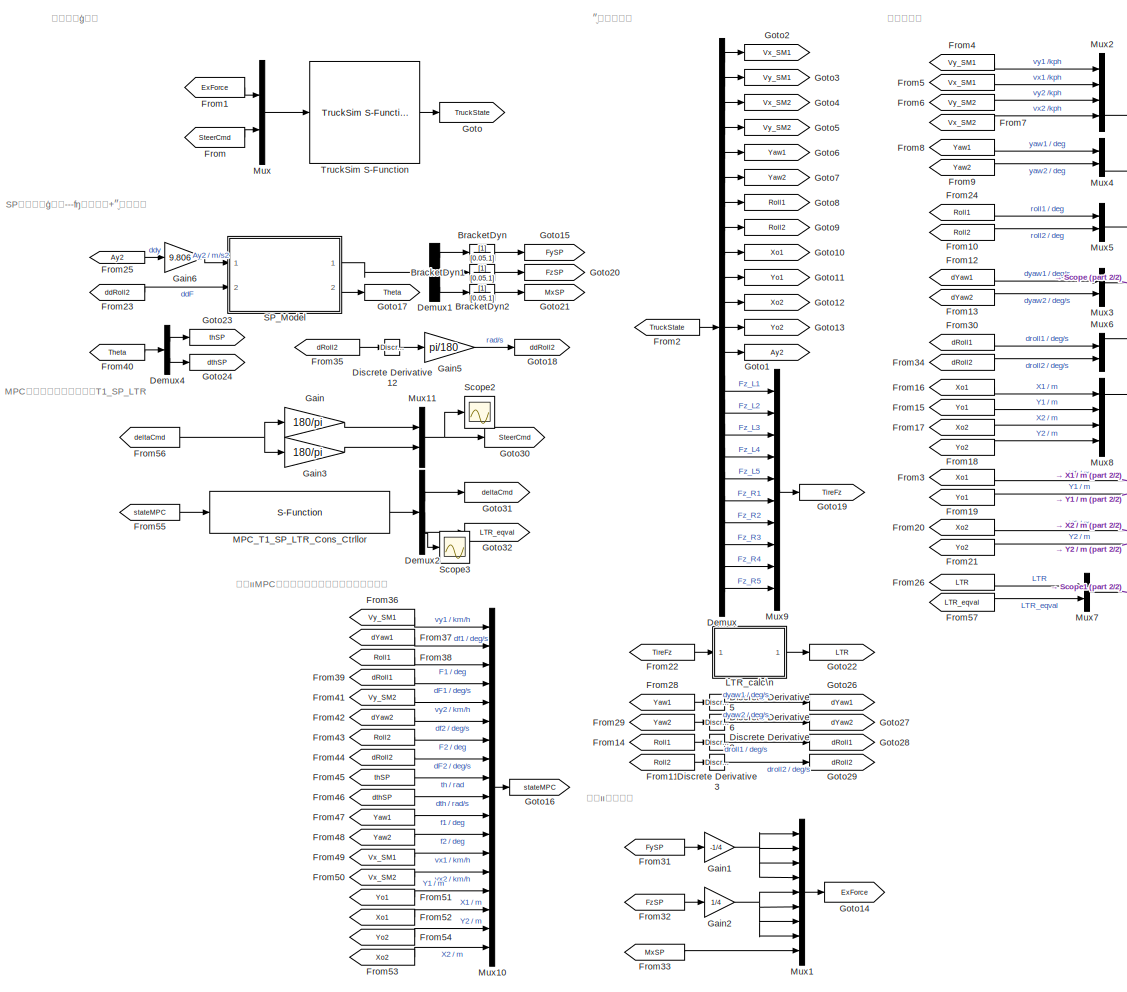
[diagram: root canvas - part 1/2, most of the canvas]
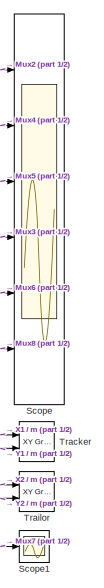
[diagram: root canvas - part 2/2, middle right region]
MODEL ALGO_Corner_TrajTrack_MPC_T1_SP_LTR
KIND model
BLOCK [TransferFcn] BracketDyn
  Denominator = [0.05 1]
  SID = 10
BLOCK [TransferFcn] BracketDyn1
  Denominator = [0.05 1]
  SID = 11
BLOCK [TransferFcn] BracketDyn2
  Denominator = [0.05 1]
  SID = 12
BLOCK [Demux] Demux
  DisplayOption = bar
  Outputs = 23
  Ports = [1, 23]
  SID = 150
BLOCK [Demux] Demux1
  DisplayOption = bar
  Outputs = 3
  Ports = [1, 3]
  SID = 13
BLOCK [Demux] Demux2
  DisplayOption = bar
  Outputs = 3
  Ports = [1, 3]
  SID = 218
BLOCK [Demux] Demux4
  DisplayOption = bar
  Outputs = 2
  Ports = [1, 2]
  SID = 14
BLOCK [Reference] Discrete Derivative12  REF=simulink/Discrete/Discrete Derivative
  DoSatur = off
  ICPrevScaledInput = 0.0
  InputProcessing = Elements as channels (sample based)
  LockScale = off
  OutDataType = fixdt(1, 16)
  OutDataTypeStr = Inherit: Inherit via internal rule
  OutMax = []
  OutMin = []
  OutScaling = 2^-10
  OutputDataTypeScalingMode = Inherit via internal rule
  Ports = [1, 1]
  RndMeth = Floor
  SID = 15
  SourceBlock = simulink/Discrete/Discrete Derivative
  SourceProductBaseCode = SL
  SourceProductName = Simulink
  SourceType = Discrete Derivative
  gainval = 1.0
BLOCK [Reference] Discrete Derivative2  REF=simulink/Discrete/Discrete Derivative
  DoSatur = off
  ICPrevScaledInput = 0.0
  InputProcessing = Elements as channels (sample based)
  LockScale = off
  OutDataType = fixdt(1, 16)
  OutDataTypeStr = Inherit: Inherit via internal rule
  OutMax = []
  OutMin = []
  OutScaling = 2^-10
  OutputDataTypeScalingMode = Inherit via internal rule
  Ports = [1, 1]
  RndMeth = Floor
  SID = 48
  SourceBlock = simulink/Discrete/Discrete Derivative
  SourceProductBaseCode = SL
  SourceProductName = Simulink
  SourceType = Discrete Derivative
  gainval = 1.0
BLOCK [Reference] Discrete Derivative3  REF=simulink/Discrete/Discrete Derivative
  DoSatur = off
  ICPrevScaledInput = 0.0
  InputProcessing = Elements as channels (sample based)
  LockScale = off
  OutDataType = fixdt(1, 16)
  OutDataTypeStr = Inherit: Inherit via internal rule
  OutMax = []
  OutMin = []
  OutScaling = 2^-10
  OutputDataTypeScalingMode = Inherit via internal rule
  Ports = [1, 1]
  RndMeth = Floor
  SID = 49
  SourceBlock = simulink/Discrete/Discrete Derivative
  SourceProductBaseCode = SL
  SourceProductName = Simulink
  SourceType = Discrete Derivative
  gainval = 1.0
BLOCK [Reference] Discrete Derivative5  REF=simulink/Discrete/Discrete Derivative
  DoSatur = off
  ICPrevScaledInput = 0.0
  InputProcessing = Elements as channels (sample based)
  LockScale = off
  OutDataType = fixdt(1, 16)
  OutDataTypeStr = Inherit: Inherit via internal rule
  OutMax = []
  OutMin = []
  OutScaling = 2^-10
  OutputDataTypeScalingMode = Inherit via internal rule
  Ports = [1, 1]
  RndMeth = Floor
  SID = 178
  SourceBlock = simulink/Discrete/Discrete Derivative
  SourceProductBaseCode = SL
  SourceProductName = Simulink
  SourceType = Discrete Derivative
  gainval = 1.0
BLOCK [Reference] Discrete Derivative6  REF=simulink/Discrete/Discrete Derivative
  DoSatur = off
  ICPrevScaledInput = 0.0
  InputProcessing = Elements as channels (sample based)
  LockScale = off
  OutDataType = fixdt(1, 16)
  OutDataTypeStr = Inherit: Inherit via internal rule
  OutMax = []
  OutMin = []
  OutScaling = 2^-10
  OutputDataTypeScalingMode = Inherit via internal rule
  Ports = [1, 1]
  RndMeth = Floor
  SID = 179
  SourceBlock = simulink/Discrete/Discrete Derivative
  SourceProductBaseCode = SL
  SourceProductName = Simulink
  SourceType = Discrete Derivative
  gainval = 1.0
BLOCK [From] From
  GotoTag = SteerCmd
  SID = 3
BLOCK [From] From1
  GotoTag = ExForce
  SID = 8
BLOCK [From] From10
  GotoTag = Roll2
  SID = 50
BLOCK [From] From11
  GotoTag = Roll2
  SID = 51
BLOCK [From] From12
  GotoTag = dYaw1
  SID = 184
BLOCK [From] From13
  GotoTag = dYaw2
  SID = 185
BLOCK [From] From14
  GotoTag = Roll1
  SID = 54
BLOCK [From] From15
  GotoTag = Yo1
  SID = 55
BLOCK [From] From16
  GotoTag = Xo1
  SID = 56
BLOCK [From] From17
  GotoTag = Xo2
  SID = 57
BLOCK [From] From18
  GotoTag = Yo2
  SID = 58
BLOCK [From] From19
  GotoTag = Yo1
  SID = 59
BLOCK [From] From2
  GotoTag = TruckState
  SID = 151
BLOCK [From] From20
  GotoTag = Xo2
  SID = 60
BLOCK [From] From21
  GotoTag = Yo2
  SID = 61
BLOCK [From] From22
  GotoTag = TireFz
  SID = 170
BLOCK [From] From23
  GotoTag = ddRoll2
  SID = 17
BLOCK [From] From24
  GotoTag = Roll1
  SID = 62
BLOCK [From] From25
  GotoTag = Ay2
  SID = 18
BLOCK [From] From26
  GotoTag = LTR
  SID = 176
BLOCK [From] From28
  GotoTag = Yaw1
  SID = 180
BLOCK [From] From29
  GotoTag = Yaw2
  SID = 181
BLOCK [From] From3
  GotoTag = Xo1
  SID = 63
BLOCK [From] From30
  GotoTag = dRoll1
  SID = 188
BLOCK [From] From31
  GotoTag = FySP
  SID = 19
BLOCK [From] From32
  GotoTag = FzSP
  SID = 20
BLOCK [From] From33
  GotoTag = MxSP
  SID = 21
BLOCK [From] From34
  GotoTag = dRoll2
  SID = 189
BLOCK [From] From35
  GotoTag = dRoll2
  SID = 190
BLOCK [From] From36
  GotoTag = Vy_SM1
  SID = 196
BLOCK [From] From37
  GotoTag = dYaw1
  SID = 197
BLOCK [From] From38
  GotoTag = Roll1
  SID = 198
BLOCK [From] From39
  GotoTag = dRoll1
  SID = 199
BLOCK [From] From4
  GotoTag = Vy_SM1
  SID = 64
BLOCK [From] From40
  GotoTag = Theta
  SID = 23
BLOCK [From] From41
  GotoTag = Vy_SM2
  SID = 200
BLOCK [From] From42
  GotoTag = dYaw2
  SID = 201
BLOCK [From] From43
  GotoTag = Roll2
  SID = 202
BLOCK [From] From44
  GotoTag = dRoll2
  SID = 203
BLOCK [From] From45
  GotoTag = thSP
  SID = 204
BLOCK [From] From46
  GotoTag = dthSP
  SID = 205
BLOCK [From] From47
  GotoTag = Yaw1
  SID = 206
BLOCK [From] From48
  GotoTag = Yaw2
  SID = 207
BLOCK [From] From49
  GotoTag = Vx_SM1
  SID = 208
BLOCK [From] From5
  GotoTag = Vx_SM1
  SID = 65
BLOCK [From] From50
  GotoTag = Vx_SM2
  SID = 209
BLOCK [From] From51
  GotoTag = Yo1
  SID = 210
BLOCK [From] From52
  GotoTag = Xo1
  SID = 211
BLOCK [From] From53
  GotoTag = Xo2
  SID = 212
BLOCK [From] From54
  GotoTag = Yo2
  SID = 213
BLOCK [From] From55
  GotoTag = stateMPC
  SID = 215
BLOCK [From] From56
  GotoTag = deltaCmd
  SID = 222
BLOCK [From] From57
  GotoTag = LTR_eqval
  SID = 228
BLOCK [From] From6
  GotoTag = Vy_SM2
  SID = 66
BLOCK [From] From7
  GotoTag = Vx_SM2
  SID = 67
BLOCK [From] From8
  GotoTag = Yaw1
  SID = 68
BLOCK [From] From9
  GotoTag = Yaw2
  SID = 69
BLOCK [Gain] Gain
  Gain = 180/pi
  OutDataTypeStr = Inherit: Inherit via internal rule
  ParamDataTypeStr = Inherit: Inherit via internal rule
  SID = 223
  SaturateOnIntegerOverflow = off
BLOCK [Gain] Gain1
  Gain = -1/4
  OutDataTypeStr = Inherit: Inherit via internal rule
  ParamDataTypeStr = Inherit: Inherit via internal rule
  SID = 24
  SaturateOnIntegerOverflow = off
BLOCK [Gain] Gain2
  Gain = 1/4
  OutDataTypeStr = Inherit: Inherit via internal rule
  ParamDataTypeStr = Inherit: Inherit via internal rule
  SID = 25
  SaturateOnIntegerOverflow = off
BLOCK [Gain] Gain3
  Gain = 180/pi
  OutDataTypeStr = Inherit: Inherit via internal rule
  ParamDataTypeStr = Inherit: Inherit via internal rule
  SID = 224
  SaturateOnIntegerOverflow = off
BLOCK [Gain] Gain5
  Gain = pi/180
  OutDataTypeStr = Inherit: Inherit via internal rule
  ParamDataTypeStr = Inherit: Inherit via internal rule
  SID = 26
  SaturateOnIntegerOverflow = off
BLOCK [Gain] Gain6
  Gain = 9.806
  OutDataTypeStr = Inherit: Inherit via internal rule
  ParamDataTypeStr = Inherit: Inherit via internal rule
  SID = 27
  SaturateOnIntegerOverflow = off
BLOCK [Goto] Goto
  GotoTag = TruckState
  SID = 4
BLOCK [Goto] Goto1
  GotoTag = Ay2
  SID = 152
BLOCK [Goto] Goto10
  GotoTag = Xo1
  SID = 153
BLOCK [Goto] Goto11
  GotoTag = Yo1
  SID = 154
BLOCK [Goto] Goto12
  GotoTag = Xo2
  SID = 155
BLOCK [Goto] Goto13
  GotoTag = Yo2
  SID = 156
BLOCK [Goto] Goto14
  GotoTag = ExForce
  SID = 28
BLOCK [Goto] Goto15
  GotoTag = FySP
  SID = 29
BLOCK [Goto] Goto16
  GotoTag = stateMPC
  SID = 214
BLOCK [Goto] Goto17
  GotoTag = Theta
  SID = 30
BLOCK [Goto] Goto18
  GotoTag = ddRoll2
  SID = 31
BLOCK [Goto] Goto19
  GotoTag = TireFz
  SID = 169
BLOCK [Goto] Goto2
  GotoTag = Vx_SM1
  SID = 157
BLOCK [Goto] Goto20
  GotoTag = FzSP
  SID = 32
BLOCK [Goto] Goto21
  GotoTag = MxSP
  SID = 33
BLOCK [Goto] Goto22
  GotoTag = LTR
  SID = 174
BLOCK [Goto] Goto23
  GotoTag = thSP
  SID = 34
BLOCK [Goto] Goto24
  GotoTag = dthSP
  SID = 35
BLOCK [Goto] Goto26
  GotoTag = dYaw1
  SID = 182
BLOCK [Goto] Goto27
  GotoTag = dYaw2
  SID = 183
BLOCK [Goto] Goto28
  GotoTag = dRoll1
  SID = 186
BLOCK [Goto] Goto29
  GotoTag = dRoll2
  SID = 187
BLOCK [Goto] Goto3
  GotoTag = Vy_SM1
  SID = 160
BLOCK [Goto] Goto30
  GotoTag = SteerCmd
  SID = 219
BLOCK [Goto] Goto31
  GotoTag = deltaCmd
  SID = 221
BLOCK [Goto] Goto32
  GotoTag = LTR_eqval
  SID = 225
BLOCK [Goto] Goto4
  GotoTag = Vx_SM2
  SID = 161
BLOCK [Goto] Goto5
  GotoTag = Vy_SM2
  SID = 162
BLOCK [Goto] Goto6
  GotoTag = Yaw1
  SID = 163
BLOCK [Goto] Goto7
  GotoTag = Yaw2
  SID = 164
BLOCK [Goto] Goto8
  GotoTag = Roll1
  SID = 165
BLOCK [Goto] Goto9
  GotoTag = Roll2
  SID = 166
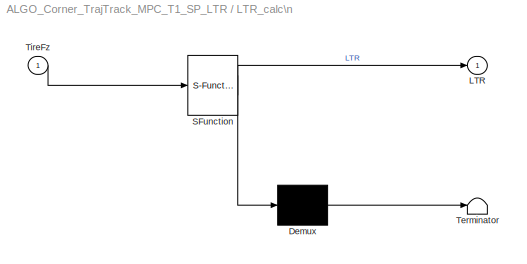
BLOCK [SubSystem] LTR_calc\n
  ErrorFcn = Stateflow.Translate.translate
  PermitHierarchicalResolution = ExplicitOnly
  Ports = [1, 1]
  RequestExecContextInheritance = off
  SFBlockType = MATLAB Function
  SID = 173
  TreatAsAtomicUnit = on
BLOCK [Demux] LTR_calc\n/ Demux 
  Outputs = 1
  Ports = [1, 1]
  SID = 173::20
BLOCK [S-Function] LTR_calc\n/ SFunction 
  EnableBusSupport = on
  FunctionName = sf_sfun
  PortCounts = [1 2]
  Ports = [1, 2]
  SFcnIsStateOwnerBlock = off
  SFunctionDeploymentMode = off
  SID = 173::19
  Tag = Stateflow S-Function ALGO_Corner_TrajTrack_MPC_T1_SP_LTR 2
BLOCK [Terminator] LTR_calc\n/ Terminator 
  SID = 173::21
BLOCK [Outport] LTR_calc\n/LTR
  IconDisplay = Port number
  SID = 173::5
BLOCK [Inport] LTR_calc\n/TireFz
  IconDisplay = Port number
  SID = 173::1
BLOCK [S-Function] MPC_T1_SP_LTR_Cons_Ctrllor
  EnableBusSupport = off
  FunctionName = MPC_Corner_TrajTrackT1_SP_LTR_Cons_Ctrllor
  Ports = [1, 1]
  SFcnIsStateOwnerBlock = off
  SFunctionDeploymentMode = off
  SID = 194
BLOCK [Mux] Mux
  DisplayOption = bar
  Inputs = 2
  Ports = [2, 1]
  SID = 9
BLOCK [Mux] Mux1
  DisplayOption = bar
  Inputs = 9
  Ports = [9, 1]
  SID = 36
BLOCK [Mux] Mux10
  DisplayOption = bar
  Inputs = 18
  Ports = [18, 1]
  SID = 195
BLOCK [Mux] Mux11
  DisplayOption = bar
  Inputs = 2
  Ports = [2, 1]
  SID = 220
BLOCK [Mux] Mux2
  DisplayOption = bar
  Ports = [4, 1]
  SID = 70
BLOCK [Mux] Mux3
  DisplayOption = bar
  Inputs = 2
  Ports = [2, 1]
  SID = 71
BLOCK [Mux] Mux4
  DisplayOption = bar
  Inputs = 2
  Ports = [2, 1]
  SID = 72
BLOCK [Mux] Mux5
  DisplayOption = bar
  Inputs = 2
  Ports = [2, 1]
  SID = 73
BLOCK [Mux] Mux6
  DisplayOption = bar
  Inputs = 2
  Ports = [2, 1]
  SID = 74
BLOCK [Mux] Mux7
  DisplayOption = bar
  Inputs = 2
  Ports = [2, 1]
  SID = 230
BLOCK [Mux] Mux8
  DisplayOption = bar
  Ports = [4, 1]
  SID = 75
BLOCK [Mux] Mux9
  DisplayOption = bar
  Inputs = 10
  Ports = [10, 1]
  SID = 168
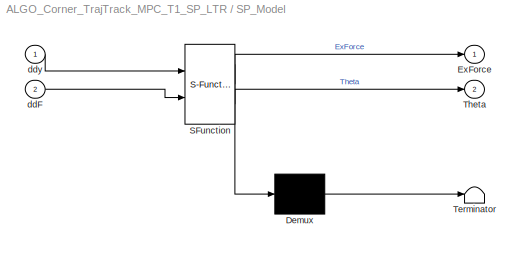
BLOCK [SubSystem] SP_Model
  ErrorFcn = Stateflow.Translate.translate
  PermitHierarchicalResolution = ExplicitOnly
  Ports = [2, 2]
  RequestExecContextInheritance = off
  SFBlockType = MATLAB Function
  SID = 37
  SystemSampleTime = 0.005
  TreatAsAtomicUnit = on
BLOCK [Demux] SP_Model/ Demux 
  Outputs = 1
  Ports = [1, 1]
  SID = 37::20
BLOCK [S-Function] SP_Model/ SFunction 
  EnableBusSupport = on
  FunctionName = sf_sfun
  PortCounts = [2 3]
  Ports = [2, 3]
  SFcnIsStateOwnerBlock = off
  SFunctionDeploymentMode = off
  SID = 37::19
  Tag = Stateflow S-Function ALGO_Corner_TrajTrack_MPC_T1_SP_LTR 1
BLOCK [Terminator] SP_Model/ Terminator 
  SID = 37::21
BLOCK [Outport] SP_Model/ExForce
  IconDisplay = Port number
  SID = 37::5
BLOCK [Outport] SP_Model/Theta
  IconDisplay = Port number
  Port = 2
  SID = 37::23
BLOCK [Inport] SP_Model/ddF
  IconDisplay = Port number
  Port = 2
  SID = 37::22
BLOCK [Inport] SP_Model/ddy
  IconDisplay = Port number
  SID = 37::1
BLOCK [Scope] Scope
  Floating = off
  NumInputPorts = 6
  Ports = [6]
  SID = 76
  ScopeSpecificationString = Simulink.scopes.TimeScopeBlockCfg('CurrentConfiguration', extmgr.ConfigurationSet(extmgr.Configuration('Core','General UI',true),extmgr.Configuration('Core','Source UI',true),extmgr.Configuration('Sources','WiredSimulink',true),extmgr.Configuration('Visuals','Time Domain',true,'SerializedDisplays',{struct('MinYLimReal','-3.99985','MaxYLimReal','4.73302','YLabelReal','','MinYLimMag','0.00000','MaxY...<+4974ch>
BLOCK [Scope] Scope1
  Floating = off
  NumInputPorts = 1
  Ports = [1]
  SID = 232
  ScopeSpecificationString = Simulink.scopes.TimeScopeBlockCfg('CurrentConfiguration', extmgr.ConfigurationSet(extmgr.Configuration('Core','General UI',true),extmgr.Configuration('Core','Source UI',true),extmgr.Configuration('Sources','WiredSimulink',true,'DataLoggingVariableName','ScopeData1'),extmgr.Configuration('Visuals','Time Domain',true,'SerializedDisplays',{struct('MinYLimReal','-1.43891','MaxYLimReal','3.98964','YLab...<+1465ch>
BLOCK [Scope] Scope2
  Floating = off
  NumInputPorts = 1
  Ports = [1]
  SID = 227
  ScopeSpecificationString = Simulink.scopes.TimeScopeBlockCfg('CurrentConfiguration', extmgr.ConfigurationSet(extmgr.Configuration('Core','General UI',true),extmgr.Configuration('Core','Source UI',true),extmgr.Configuration('Sources','WiredSimulink',true,'DataLoggingVariableName','ScopeData2'),extmgr.Configuration('Visuals','Time Domain',true,'SerializedDisplays',{struct('MinYLimReal','-5.86223','MaxYLimReal','6.89259','YLab...<+1400ch>
BLOCK [Scope] Scope3
  Floating = off
  NumInputPorts = 1
  Ports = [1]
  SID = 233
  ScopeSpecificationString = Simulink.scopes.TimeScopeBlockCfg('CurrentConfiguration', extmgr.ConfigurationSet(extmgr.Configuration('Core','General UI',true),extmgr.Configuration('Core','Source UI',true),extmgr.Configuration('Sources','WiredSimulink',true,'DataLoggingVariableName','ScopeData1'),extmgr.Configuration('Visuals','Time Domain',true,'SerializedDisplays',{struct('MinYLimReal','0.875','MaxYLimReal','2.125','YLabelRea...<+1377ch>
BLOCK [Reference] Tracker  REF=simulink/Sinks/XY Graph
  Ports = [2]
  SID = 77
  SourceBlock = simulink/Sinks/XY Graph
  SourceProductBaseCode = SL
  SourceProductName = Simulink
  SourceType = XY scope.
  st = -1
  xmax = 80
  xmin = -10
  ymax = 80
  ymin = -10
BLOCK [Reference] Trailor   REF=simulink/Sinks/XY Graph
  Commented = on
  Ports = [2]
  SID = 78
  SourceBlock = simulink/Sinks/XY Graph
  SourceProductBaseCode = SL
  SourceProductName = Simulink
  SourceType = XY scope.
  st = -1
  xmax = 250
  xmin = -10
  ymax = 20
  ymin = -20
BLOCK [Reference] TruckSim S-Function  REF=Solver_SF/TruckSim S-Function
  MultiThreadCoSim = auto
  Ports = [1, 1]
  Priority = 1
  SID = 1
  SIMFILE = ALGO_Corner_Tanker_TrajTrack_MPC_T1_SP_LTR.sim
  SourceBlock = Solver_SF/TruckSim S-Function
  SourceType = Vehicle math model library
ANNOTATION (root): MPC控制器——T1_SP_LTR
ANNOTATION (root): SP单摆模型---Ê<copyright redacted>
ANNOTATION (root): 车辆模型
ANNOTATION (root): 观测区
ANNOTATION (root): 状态量拆分
ANNOTATION (root): 组装MPC控制器所用输入量
ANNOTATION (root): 组装外部力
LINE BracketDyn1:1 -> Goto20:1
LINE BracketDyn2:1 -> Goto21:1
LINE BracketDyn:1 -> Goto15:1
LINE Demux1:1 -> BracketDyn:1
LINE Demux1:2 -> BracketDyn1:1
LINE Demux1:3 -> BracketDyn2:1
LINE Demux2:1 -> Goto31:1
LINE Demux2:2 -> Goto32:1
LINE Demux2:3 -> Scope3:1
LINE Demux4:1 -> Goto23:1
LINE Demux4:2 -> Goto24:1
LINE Demux:1 -> Goto2:1
LINE Demux:10 -> Goto11:1
LINE Demux:11 -> Goto12:1
LINE Demux:12 -> Goto13:1
LINE Demux:13 -> Goto1:1
LINE Demux:14 -> Mux9:1
LINE Demux:15 -> Mux9:2
LINE Demux:16 -> Mux9:3
LINE Demux:17 -> Mux9:4
LINE Demux:18 -> Mux9:5
LINE Demux:19 -> Mux9:6
LINE Demux:2 -> Goto3:1
LINE Demux:20 -> Mux9:7
LINE Demux:21 -> Mux9:8
LINE Demux:22 -> Mux9:9
LINE Demux:23 -> Mux9:10
LINE Demux:3 -> Goto4:1
LINE Demux:4 -> Goto5:1
LINE Demux:5 -> Goto6:1
LINE Demux:6 -> Goto7:1
LINE Demux:7 -> Goto8:1
LINE Demux:8 -> Goto9:1
LINE Demux:9 -> Goto10:1
LINE Discrete Derivative12:1 -> Gain5:1
LINE Discrete Derivative2:1 -> Goto28:1
LINE Discrete Derivative3:1 -> Goto29:1
LINE Discrete Derivative5:1 -> Goto26:1
LINE Discrete Derivative6:1 -> Goto27:1
LINE From10:1 -> Mux5:2
LINE From11:1 -> Discrete Derivative3:1
LINE From12:1 -> Mux3:1
LINE From13:1 -> Mux3:2
LINE From14:1 -> Discrete Derivative2:1
LINE From15:1 -> Mux8:2
LINE From16:1 -> Mux8:1
LINE From17:1 -> Mux8:3
LINE From18:1 -> Mux8:4
LINE From19:1 -> Tracker:2
LINE From1:1 -> Mux:1
LINE From20:1 -> Trailor :1
LINE From21:1 -> Trailor :2
LINE From22:1 -> LTR_calc\n:1
LINE From23:1 -> SP_Model:2
LINE From24:1 -> Mux5:1
LINE From25:1 -> Gain6:1
LINE From26:1 -> Mux7:1
LINE From28:1 -> Discrete Derivative5:1
LINE From29:1 -> Discrete Derivative6:1
LINE From2:1 -> Demux:1
LINE From30:1 -> Mux6:1
LINE From31:1 -> Gain1:1
LINE From32:1 -> Gain2:1
LINE From33:1 -> Mux1:9
LINE From34:1 -> Mux6:2
LINE From35:1 -> Discrete Derivative12:1
LINE From36:1 -> Mux10:1
LINE From37:1 -> Mux10:2
LINE From38:1 -> Mux10:3
LINE From39:1 -> Mux10:4
LINE From3:1 -> Tracker:1
LINE From40:1 -> Demux4:1
LINE From41:1 -> Mux10:5
LINE From42:1 -> Mux10:6
LINE From43:1 -> Mux10:7
LINE From44:1 -> Mux10:8
LINE From45:1 -> Mux10:9
LINE From46:1 -> Mux10:10
LINE From47:1 -> Mux10:11
LINE From48:1 -> Mux10:12
LINE From49:1 -> Mux10:13
LINE From4:1 -> Mux2:1
LINE From50:1 -> Mux10:14
LINE From51:1 -> Mux10:15
LINE From52:1 -> Mux10:16
LINE From53:1 -> Mux10:18
LINE From54:1 -> Mux10:17
LINE From55:1 -> MPC_T1_SP_LTR_Cons_Ctrllor:1
NET From56:1 -> Gain3:1, Gain:1
LINE From57:1 -> Mux7:2
LINE From5:1 -> Mux2:2
LINE From6:1 -> Mux2:3
LINE From7:1 -> Mux2:4
LINE From8:1 -> Mux4:1
LINE From9:1 -> Mux4:2
LINE From:1 -> Mux:2
NET Gain1:1 -> Mux1:1, Mux1:2, Mux1:3, Mux1:4
NET Gain2:1 -> Mux1:5, Mux1:6, Mux1:7, Mux1:8
LINE Gain3:1 -> Mux11:2
LINE Gain5:1 -> Goto18:1
LINE Gain6:1 -> SP_Model:1
LINE Gain:1 -> Mux11:1
LINE LTR_calc\n/ Demux :1 -> LTR_calc\n/ Terminator :1
LINE LTR_calc\n/ SFunction :1 -> LTR_calc\n/ Demux :1
LINE LTR_calc\n/ SFunction :2 -> LTR_calc\n/LTR:1
LINE LTR_calc\n/TireFz:1 -> LTR_calc\n/ SFunction :1
LINE LTR_calc\n:1 -> Goto22:1
LINE MPC_T1_SP_LTR_Cons_Ctrllor:1 -> Demux2:1
LINE Mux10:1 -> Goto16:1
NET Mux11:1 -> Goto30:1, Scope2:1
LINE Mux1:1 -> Goto14:1
LINE Mux2:1 -> Scope:1
LINE Mux3:1 -> Scope:4
LINE Mux4:1 -> Scope:2
LINE Mux5:1 -> Scope:3
LINE Mux6:1 -> Scope:5
LINE Mux7:1 -> Scope1:1
LINE Mux8:1 -> Scope:6
LINE Mux9:1 -> Goto19:1
LINE Mux:1 -> TruckSim S-Function:1
LINE SP_Model/ Demux :1 -> SP_Model/ Terminator :1
LINE SP_Model/ SFunction :1 -> SP_Model/ Demux :1
LINE SP_Model/ SFunction :2 -> SP_Model/ExForce:1
LINE SP_Model/ SFunction :3 -> SP_Model/Theta:1
LINE SP_Model/ddF:1 -> SP_Model/ SFunction :2
LINE SP_Model/ddy:1 -> SP_Model/ SFunction :1
LINE SP_Model:1 -> Demux1:1
LINE SP_Model:2 -> Goto17:1
LINE TruckSim S-Function:1 -> Goto:1
note: NET lines group one-source signal fan-out (src -> all destinations, sorted); 1:1 wires keep LINE
CHART SP_Model states=1 transitions=1
  STATE_LABEL 'eML_blk_kernel()'
CHART LTR_calc\n states=1 transitions=1
  STATE_LABEL 'eML_blk_kernel()'
